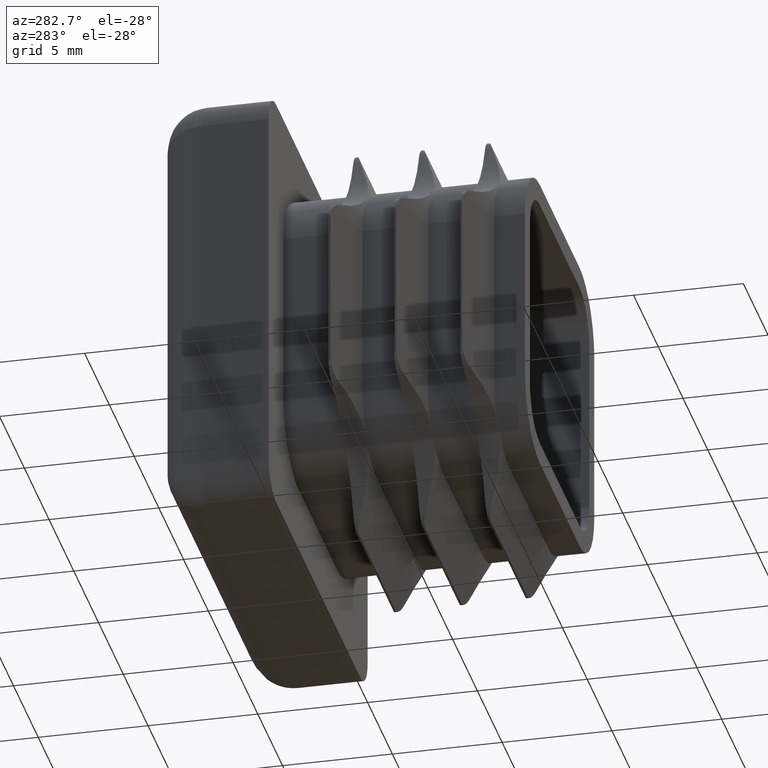
[diagram: clean part render]
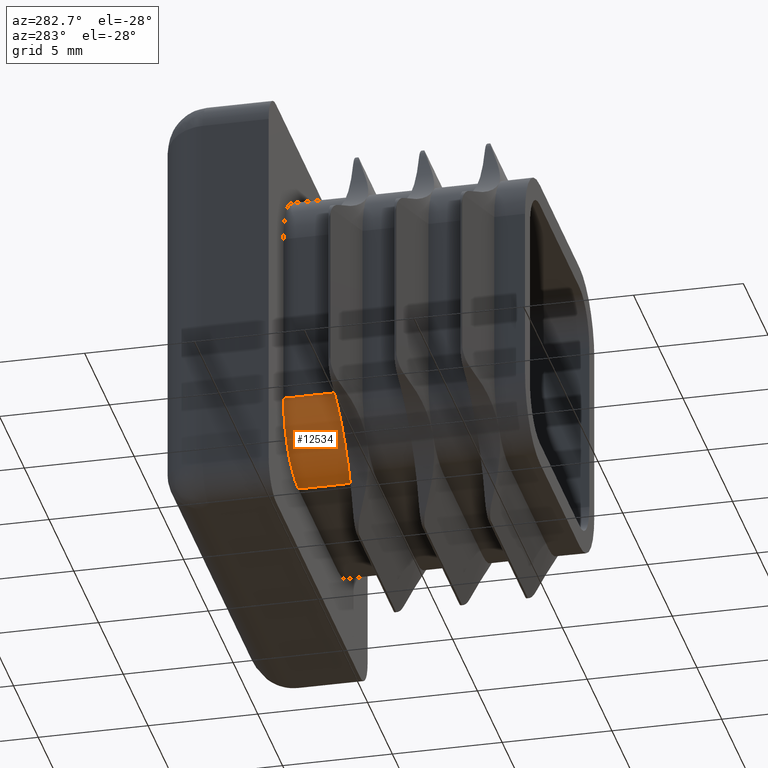
[diagram: same view with one face highlighted and labeled with its STEP entity id]
A machine part, auxiliary view. The second image highlights one B-rep face of the part: STEP entity #12534.
In plain terms, the highlighted cylindrical surface (partial cylindrical patch) has radius 3 mm, axis along (-0, 1, -0).
Its self-contained STEP definition (entity closure, byte-faithful):
#75 = AXIS2_PLACEMENT_3D ( 'NONE', #7939, #14289, #3451 ) ;
#404 = CARTESIAN_POINT ( 'NONE',  ( -3.999999999999996447, -2.600000000000000089, -6.999999999999985789 ) ) ;
#437 = EDGE_CURVE ( 'NONE', #16357, #5463, #17923, .T. ) ;
#1709 = CYLINDRICAL_SURFACE ( 'NONE', #9306, 3.000000000000002665 ) ;
#1729 = ORIENTED_EDGE ( 'NONE', *, *, #437, .F. ) ;
#1786 = CIRCLE ( 'NONE', #9941, 3.000000000000002665 ) ;
#1798 = EDGE_CURVE ( 'NONE', #14632, #7609, #19740, .T. ) ;
#2347 = DIRECTION ( 'NONE',  ( 0.000000000000000000, 1.000000000000000000, 0.000000000000000000 ) ) ;
#2371 = EDGE_LOOP ( 'NONE', ( #17063, #1729, #11708, #7278, #9699 ) ) ;
#3079 = CIRCLE ( 'NONE', #8697, 2.999999999999998224 ) ;
#3330 = VECTOR ( 'NONE', #19627, 1000.000000000000000 ) ;
#3361 = EDGE_CURVE ( 'NONE', #16310, #14632, #9041, .T. ) ;
#3451 = DIRECTION ( 'NONE',  ( 0.000000000000000000, 0.000000000000000000, -1.000000000000000000 ) ) ;
#3953 = CARTESIAN_POINT ( 'NONE',  ( -6.999999999999999112, -11.00000000000000000, -3.999999999999983569 ) ) ;
#4031 = DIRECTION ( 'NONE',  ( -0.000000000000000000, 1.000000000000000000, -0.000000000000000000 ) ) ;
#4933 = EDGE_CURVE ( 'NONE', #16357, #16310, #3079, .T. ) ;
#5380 = CARTESIAN_POINT ( 'NONE',  ( -6.999999999999999112, 0.000000000000000000, -3.999999999999983569 ) ) ;
#5463 = VERTEX_POINT ( 'NONE', #20034 ) ;
#6434 = CARTESIAN_POINT ( 'NONE',  ( -6.121320343559613519, -2.600000000000000089, -6.121320343559641941 ) ) ;
#7278 = ORIENTED_EDGE ( 'NONE', *, *, #3361, .T. ) ;
#7288 = CARTESIAN_POINT ( 'NONE',  ( -3.999999999999989786, -2.600000000000000089, -3.999999999999982681 ) ) ;
#7609 = VERTEX_POINT ( 'NONE', #5380 ) ;
#7939 = CARTESIAN_POINT ( 'NONE',  ( -3.999999999999989786, -2.600000000000000089, -3.999999999999982681 ) ) ;
#8697 = AXIS2_PLACEMENT_3D ( 'NONE', #7288, #2347, #11910 ) ;
#9041 = CIRCLE ( 'NONE', #75, 2.999999999999998224 ) ;
#9306 = AXIS2_PLACEMENT_3D ( 'NONE', #19274, #14738, #14667 ) ;
#9699 = ORIENTED_EDGE ( 'NONE', *, *, #1798, .T. ) ;
#9941 = AXIS2_PLACEMENT_3D ( 'NONE', #18747, #13867, #14011 ) ;
#10554 = VECTOR ( 'NONE', #4031, 1000.000000000000000 ) ;
#11139 = FACE_OUTER_BOUND ( 'NONE', #2371, .T. ) ;
#11708 = ORIENTED_EDGE ( 'NONE', *, *, #4933, .T. ) ;
#11910 = DIRECTION ( 'NONE',  ( 0.000000000000000000, 0.000000000000000000, -1.000000000000000000 ) ) ;
#12534 = ADVANCED_FACE ( 'NONE', ( #11139 ), #1709, .T. ) ;
#13753 = CARTESIAN_POINT ( 'NONE',  ( -6.999999999999999112, -2.600000000000000089, -3.999999999999983569 ) ) ;
#13867 = DIRECTION ( 'NONE',  ( 0.000000000000000000, -1.000000000000000000, 0.000000000000000000 ) ) ;
#14011 = DIRECTION ( 'NONE',  ( 0.000000000000000000, 0.000000000000000000, 1.000000000000000000 ) ) ;
#14289 = DIRECTION ( 'NONE',  ( 0.000000000000000000, 1.000000000000000000, 0.000000000000000000 ) ) ;
#14632 = VERTEX_POINT ( 'NONE', #13753 ) ;
#14667 = DIRECTION ( 'NONE',  ( 0.000000000000000000, 0.000000000000000000, 1.000000000000000000 ) ) ;
#14738 = DIRECTION ( 'NONE',  ( -0.000000000000000000, 1.000000000000000000, -0.000000000000000000 ) ) ;
#16310 = VERTEX_POINT ( 'NONE', #6434 ) ;
#16357 = VERTEX_POINT ( 'NONE', #404 ) ;
#16414 = CARTESIAN_POINT ( 'NONE',  ( -3.999999999999996447, -11.00000000000000000, -6.999999999999985789 ) ) ;
#17063 = ORIENTED_EDGE ( 'NONE', *, *, #18881, .T. ) ;
#17923 = LINE ( 'NONE', #16414, #3330 ) ;
#18747 = CARTESIAN_POINT ( 'NONE',  ( -3.999999999999996447, -0.000000000000000000, -3.999999999999982681 ) ) ;
#18881 = EDGE_CURVE ( 'NONE', #7609, #5463, #1786, .T. ) ;
#19274 = CARTESIAN_POINT ( 'NONE',  ( -3.999999999999996447, -11.00000000000000000, -3.999999999999982681 ) ) ;
#19627 = DIRECTION ( 'NONE',  ( -0.000000000000000000, 1.000000000000000000, -0.000000000000000000 ) ) ;
#19740 = LINE ( 'NONE', #3953, #10554 ) ;
#20034 = CARTESIAN_POINT ( 'NONE',  ( -3.999999999999996447, 0.000000000000000000, -6.999999999999985789 ) ) ;